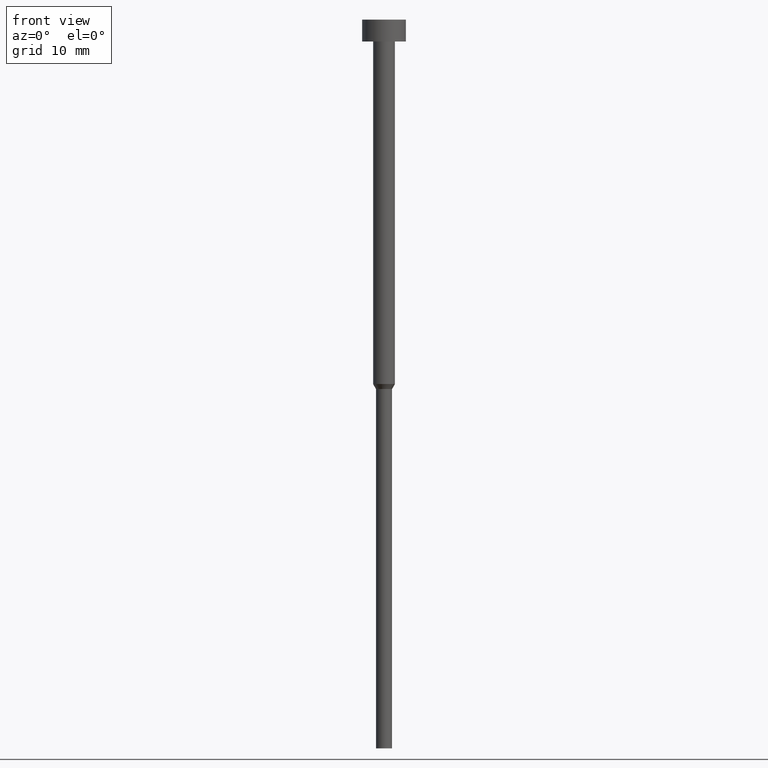
[diagram: clean part render]
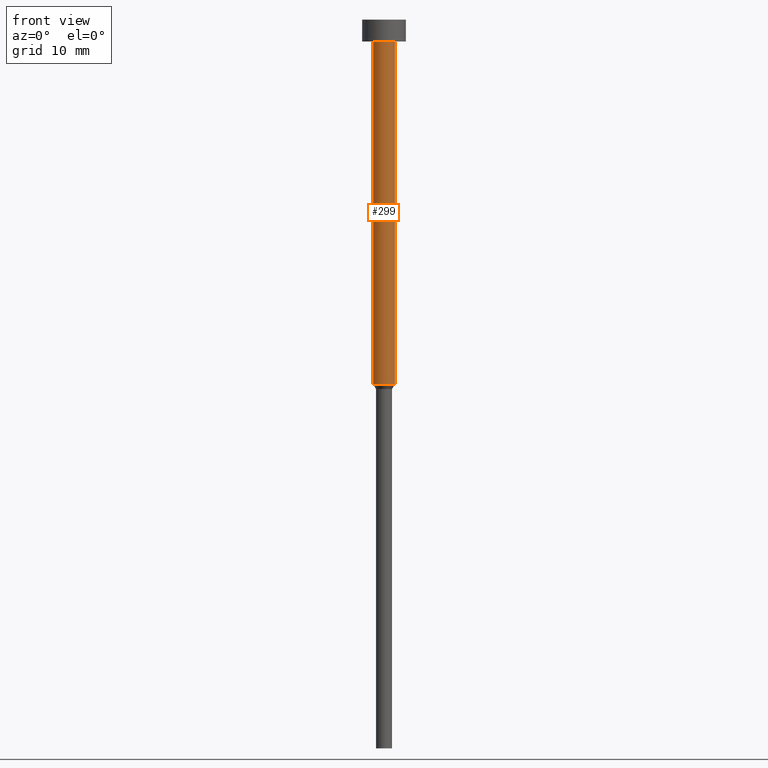
[diagram: same view with one face highlighted and labeled with its STEP entity id]
A machine part, front view. The second image highlights one B-rep face of the part: STEP entity #299.
In plain terms, the highlighted cylindrical surface (edge-blend (fillet) strip) has radius 1.5 mm, axis along (-0, -0, 1).
Its self-contained STEP definition (entity closure, byte-faithful):
#12 = LINE ( 'NONE', #229, #194 ) ;
#14 = EDGE_CURVE ( 'NONE', #198, #25, #134, .T. ) ;
#25 = VERTEX_POINT ( 'NONE', #29 ) ;
#29 = CARTESIAN_POINT ( 'NONE',  ( 1.500000000000000000, 0.000000000000000000, -50.00000000000000000 ) ) ;
#34 = DIRECTION ( 'NONE',  ( -0.000000000000000000, -0.000000000000000000, 1.000000000000000000 ) ) ;
#35 = LINE ( 'NONE', #64, #282 ) ;
#40 = VERTEX_POINT ( 'NONE', #86 ) ;
#42 = CIRCLE ( 'NONE', #228, 1.500000000000000000 ) ;
#64 = CARTESIAN_POINT ( 'NONE',  ( 1.500000000000000000, 0.000000000000000000, 0.000000000000000000 ) ) ;
#77 = ORIENTED_EDGE ( 'NONE', *, *, #318, .T. ) ;
#80 = DIRECTION ( 'NONE',  ( -0.000000000000000000, -0.000000000000000000, 1.000000000000000000 ) ) ;
#86 = CARTESIAN_POINT ( 'NONE',  ( 1.500000000000000000, 0.000000000000000000, -3.000000000000000888 ) ) ;
#88 = CARTESIAN_POINT ( 'NONE',  ( 0.000000000000000000, 0.000000000000000000, 0.000000000000000000 ) ) ;
#91 = FACE_OUTER_BOUND ( 'NONE', #103, .T. ) ;
#97 = ORIENTED_EDGE ( 'NONE', *, *, #115, .F. ) ;
#103 = EDGE_LOOP ( 'NONE', ( #105, #184, #77, #97 ) ) ;
#105 = ORIENTED_EDGE ( 'NONE', *, *, #266, .F. ) ;
#107 = VERTEX_POINT ( 'NONE', #327 ) ;
#109 = CARTESIAN_POINT ( 'NONE',  ( 0.000000000000000000, 0.000000000000000000, -3.000000000000000888 ) ) ;
#110 = AXIS2_PLACEMENT_3D ( 'NONE', #88, #34, #142 ) ;
#115 = EDGE_CURVE ( 'NONE', #107, #40, #42, .T. ) ;
#134 = CIRCLE ( 'NONE', #286, 1.500000000000000000 ) ;
#135 = DIRECTION ( 'NONE',  ( 1.000000000000000000, 0.000000000000000000, 0.000000000000000000 ) ) ;
#137 = DIRECTION ( 'NONE',  ( 1.000000000000000000, 0.000000000000000000, 0.000000000000000000 ) ) ;
#142 = DIRECTION ( 'NONE',  ( 1.000000000000000000, 0.000000000000000000, 0.000000000000000000 ) ) ;
#171 = CYLINDRICAL_SURFACE ( 'NONE', #110, 1.500000000000000000 ) ;
#184 = ORIENTED_EDGE ( 'NONE', *, *, #14, .T. ) ;
#194 = VECTOR ( 'NONE', #202, 1000.000000000000000 ) ;
#198 = VERTEX_POINT ( 'NONE', #257 ) ;
#202 = DIRECTION ( 'NONE',  ( -0.000000000000000000, -0.000000000000000000, 1.000000000000000000 ) ) ;
#222 = DIRECTION ( 'NONE',  ( -0.000000000000000000, -0.000000000000000000, 1.000000000000000000 ) ) ;
#228 = AXIS2_PLACEMENT_3D ( 'NONE', #109, #80, #135 ) ;
#229 = CARTESIAN_POINT ( 'NONE',  ( -1.500000000000000000, 1.836970198721029934E-16, 0.000000000000000000 ) ) ;
#257 = CARTESIAN_POINT ( 'NONE',  ( -1.500000000000000000, 1.836970198721029934E-16, -50.00000000000000000 ) ) ;
#266 = EDGE_CURVE ( 'NONE', #198, #107, #12, .T. ) ;
#282 = VECTOR ( 'NONE', #339, 1000.000000000000000 ) ;
#286 = AXIS2_PLACEMENT_3D ( 'NONE', #301, #222, #137 ) ;
#299 = ADVANCED_FACE ( 'NONE', ( #91 ), #171, .T. ) ;
#301 = CARTESIAN_POINT ( 'NONE',  ( 0.000000000000000000, 0.000000000000000000, -50.00000000000000000 ) ) ;
#318 = EDGE_CURVE ( 'NONE', #25, #40, #35, .T. ) ;
#327 = CARTESIAN_POINT ( 'NONE',  ( -1.500000000000000000, 1.836970198721029934E-16, -3.000000000000000888 ) ) ;
#339 = DIRECTION ( 'NONE',  ( -0.000000000000000000, -0.000000000000000000, 1.000000000000000000 ) ) ;